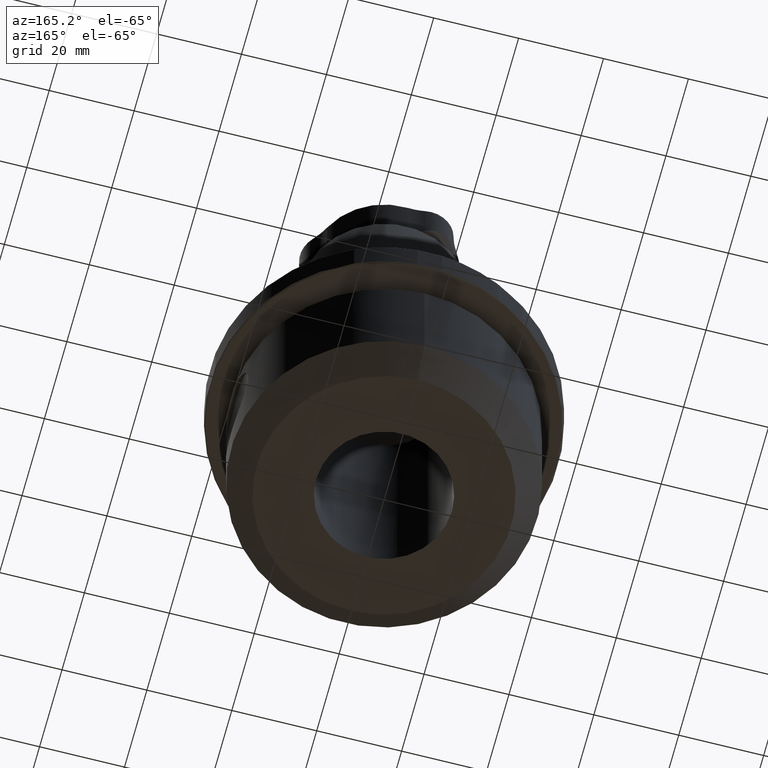
[diagram: clean part render]
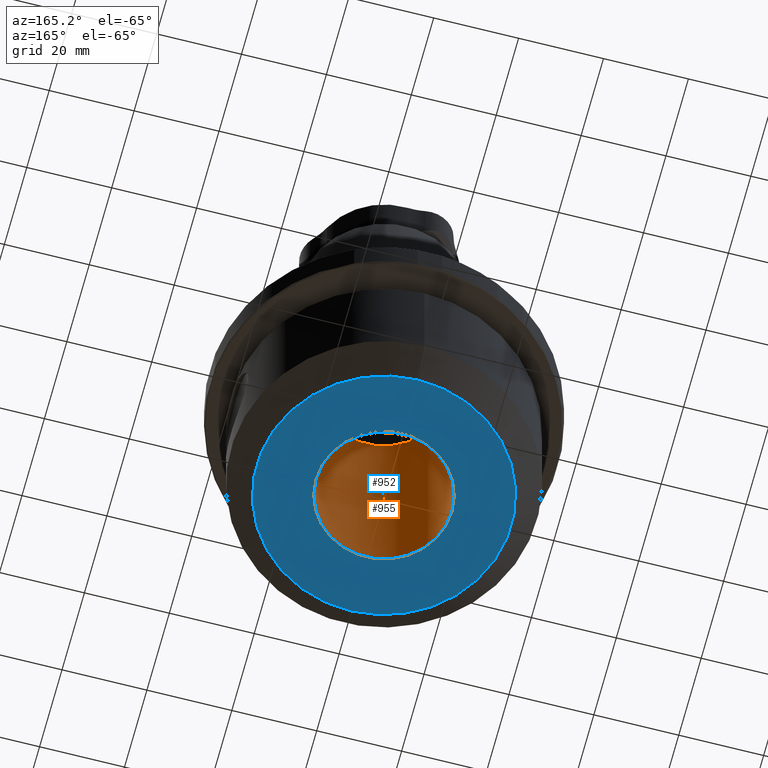
[diagram: same view with the hole feature highlighted: cylindrical wall and planar end face, labeled with their STEP entity ids]
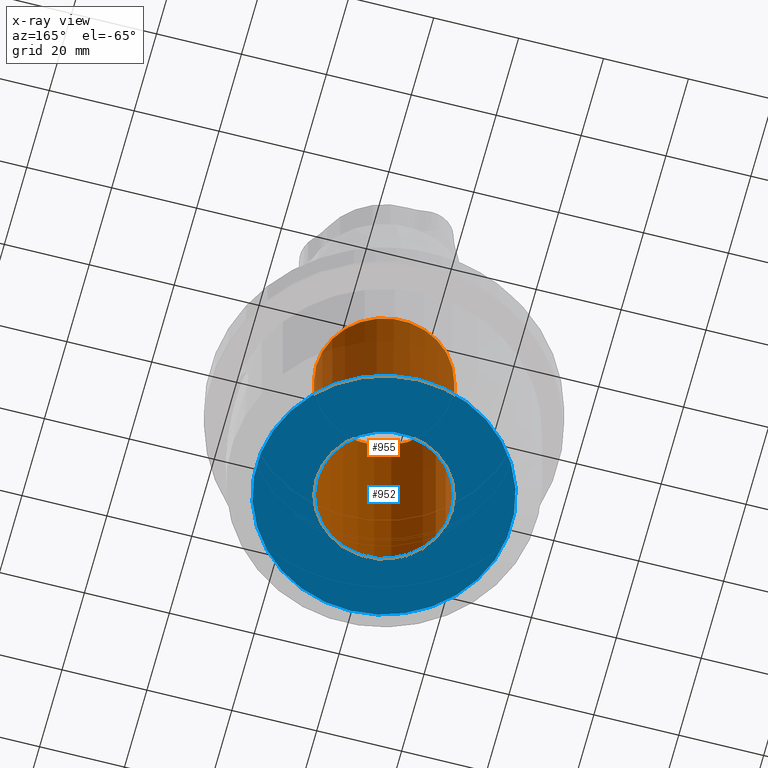
[diagram: x-ray of the same camera — body ghosted, the hole faces saturated]
A machine part, auxiliary view. The highlighted faces form one hole feature of diameter 32 mm: the cylindrical wall (entity #955, orange) and its adjacent planar end face (entity #952, blue) — they share a circular edge in the B-rep.
The next image is the same camera in x-ray (body ghosted, the hole faces saturated) — the bore reads through the body.
Wall:
#162=CIRCLE('',#1080,16.);
#164=CIRCLE('',#1085,16.);
#406=ORIENTED_EDGE('',*,*,#536,.T.);
#407=ORIENTED_EDGE('',*,*,#534,.F.);
#534=EDGE_CURVE('',#627,#627,#162,.T.);
#536=EDGE_CURVE('',#629,#629,#164,.T.);
#627=VERTEX_POINT('',#1807);
#629=VERTEX_POINT('',#1814);
#762=EDGE_LOOP('',(#406));
#763=EDGE_LOOP('',(#407));
#859=FACE_BOUND('',#762,.T.);
#860=FACE_BOUND('',#763,.T.);
#893=CYLINDRICAL_SURFACE('',#1084,16.);
#955=ADVANCED_FACE('',(#859,#860),#893,.F.);
#1080=AXIS2_PLACEMENT_3D('',#1806,#1335,#1336);
#1084=AXIS2_PLACEMENT_3D('',#1812,#1343,#1344);
#1085=AXIS2_PLACEMENT_3D('',#1813,#1345,#1346);
#1335=DIRECTION('',(0.,0.,1.));
#1336=DIRECTION('',(-1.,0.,0.));
#1343=DIRECTION('',(0.,0.,-1.));
#1344=DIRECTION('',(-1.,0.,0.));
#1345=DIRECTION('',(0.,0.,1.));
#1346=DIRECTION('',(-1.,0.,0.));
#1806=CARTESIAN_POINT('',(0.,0.,-47.));
#1807=CARTESIAN_POINT('',(-16.,0.,-47.));
#1812=CARTESIAN_POINT('',(0.,0.,14.));
#1813=CARTESIAN_POINT('',(0.,0.,14.));
#1814=CARTESIAN_POINT('',(-16.,0.,14.));
End face:
#109=PLANE('',#1079);
#162=CIRCLE('',#1080,16.);
#163=CIRCLE('',#1081,30.);
#400=ORIENTED_EDGE('',*,*,#534,.T.);
#401=ORIENTED_EDGE('',*,*,#535,.T.);
#534=EDGE_CURVE('',#627,#627,#162,.T.);
#535=EDGE_CURVE('',#628,#628,#163,.T.);
#627=VERTEX_POINT('',#1807);
#628=VERTEX_POINT('',#1809);
#756=EDGE_LOOP('',(#400));
#757=EDGE_LOOP('',(#401));
#853=FACE_BOUND('',#756,.T.);
#854=FACE_BOUND('',#757,.T.);
#952=ADVANCED_FACE('',(#853,#854),#109,.T.);
#1079=AXIS2_PLACEMENT_3D('',#1805,#1333,#1334);
#1080=AXIS2_PLACEMENT_3D('',#1806,#1335,#1336);
#1081=AXIS2_PLACEMENT_3D('',#1808,#1337,#1338);
#1333=DIRECTION('',(0.,0.,-1.));
#1334=DIRECTION('',(0.,1.,0.));
#1335=DIRECTION('',(0.,0.,1.));
#1336=DIRECTION('',(-1.,0.,0.));
#1337=DIRECTION('',(0.,0.,-1.));
#1338=DIRECTION('',(0.,1.,0.));
#1805=CARTESIAN_POINT('',(0.,30.,-47.));
#1806=CARTESIAN_POINT('',(0.,0.,-47.));
#1807=CARTESIAN_POINT('',(-16.,0.,-47.));
#1808=CARTESIAN_POINT('',(0.,0.,-47.));
#1809=CARTESIAN_POINT('',(0.,30.,-47.));